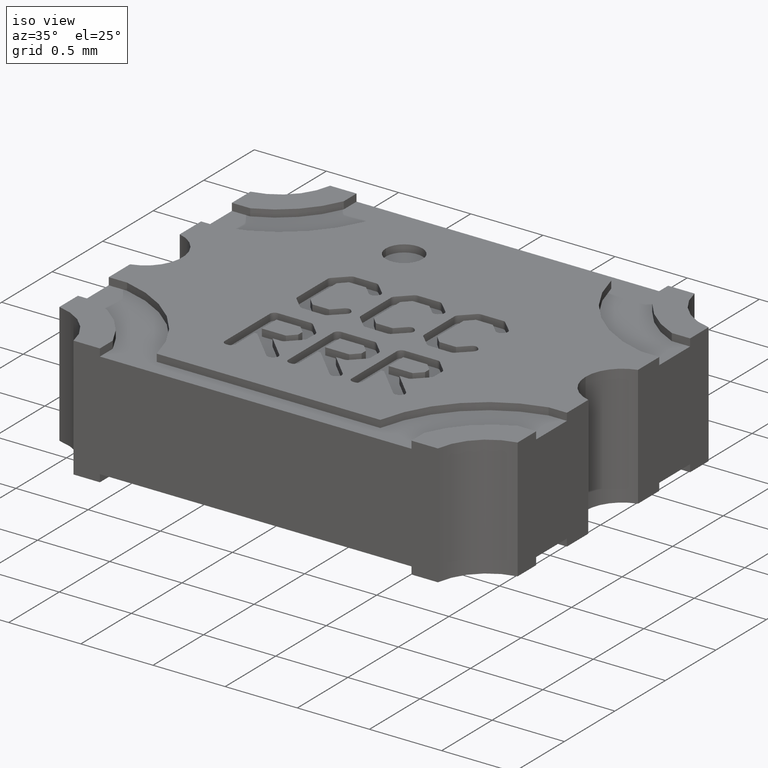
[diagram: clean part render]
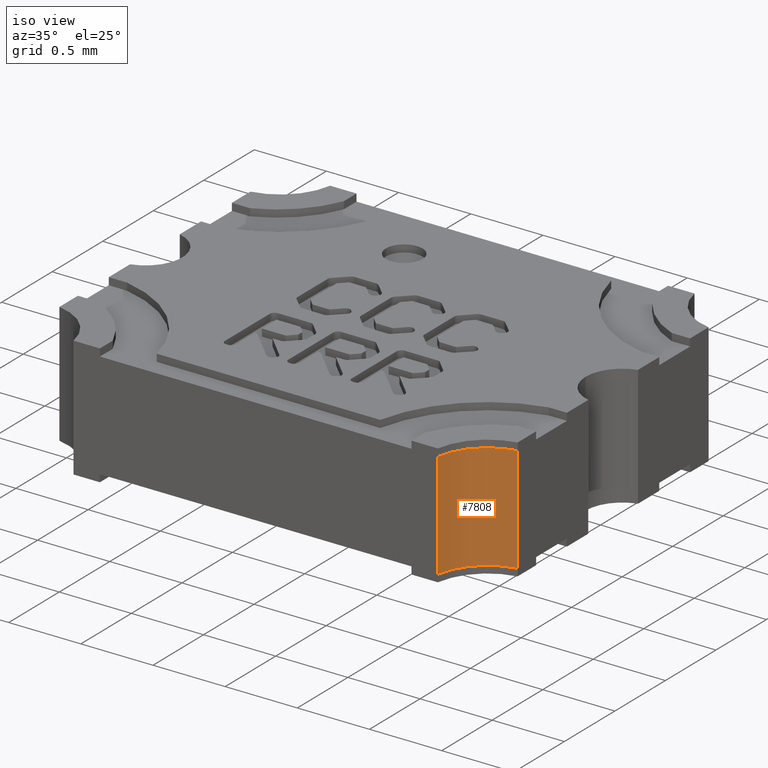
[diagram: same view with one face highlighted and labeled with its STEP entity id]
A machine part, iso view. The second image highlights one B-rep face of the part: STEP entity #7808.
In plain terms, the highlighted cylindrical surface (partial cylindrical patch) has radius 0.3937 mm, axis along (-0, -0, -1).
Its self-contained STEP definition (entity closure, byte-faithful):
#23 = EDGE_CURVE ( 'NONE', #6226, #6071, #6954, .T. ) ;
#453 = AXIS2_PLACEMENT_3D ( 'NONE', #3504, #2146, #6351 ) ;
#1162 = ORIENTED_EDGE ( 'NONE', *, *, #3834, .F. ) ;
#1305 = FACE_OUTER_BOUND ( 'NONE', #9148, .T. ) ;
#1379 = VECTOR ( 'NONE', #7645, 39.37007874015748143 ) ;
#1931 = CIRCLE ( 'NONE', #7163, 0.01549999999999998601 ) ;
#2146 = DIRECTION ( 'NONE',  ( 0.000000000000000000, 0.000000000000000000, 1.000000000000000000 ) ) ;
#2444 = ORIENTED_EDGE ( 'NONE', *, *, #23, .T. ) ;
#2577 = DIRECTION ( 'NONE',  ( -0.000000000000000000, -0.000000000000000000, -1.000000000000000000 ) ) ;
#2719 = CYLINDRICAL_SURFACE ( 'NONE', #5879, 0.01549999999999998601 ) ;
#2804 = CARTESIAN_POINT ( 'NONE',  ( 0.06500000000204800288, -0.05249999999976831533, 0.03100000000000000325 ) ) ;
#3117 = ORIENTED_EDGE ( 'NONE', *, *, #3151, .F. ) ;
#3151 = EDGE_CURVE ( 'NONE', #5619, #6071, #5983, .T. ) ;
#3161 = VERTEX_POINT ( 'NONE', #9197 ) ;
#3275 = DIRECTION ( 'NONE',  ( -1.000000000000000000, 0.000000000000000000, 0.000000000000000000 ) ) ;
#3334 = DIRECTION ( 'NONE',  ( -0.000000000000000000, -0.000000000000000000, -1.000000000000000000 ) ) ;
#3504 = CARTESIAN_POINT ( 'NONE',  ( 0.06500000000204800288, -0.05249999999976831533, 0.002000000000000000042 ) ) ;
#3643 = DIRECTION ( 'NONE',  ( 0.000000000000000000, 0.000000000000000000, 1.000000000000000000 ) ) ;
#3834 = EDGE_CURVE ( 'NONE', #3161, #5619, #4824, .T. ) ;
#4779 = CARTESIAN_POINT ( 'NONE',  ( 0.06250000000204798678, -0.03720294145898997429, 0.03100000000000000325 ) ) ;
#4824 = LINE ( 'NONE', #4779, #6309 ) ;
#5238 = CARTESIAN_POINT ( 'NONE',  ( 0.04970294146126964796, -0.04999999999976832699, 0.03100000000000000325 ) ) ;
#5619 = VERTEX_POINT ( 'NONE', #7890 ) ;
#5621 = EDGE_CURVE ( 'NONE', #3161, #6226, #1931, .T. ) ;
#5879 = AXIS2_PLACEMENT_3D ( 'NONE', #6873, #2577, #3275 ) ;
#5983 = CIRCLE ( 'NONE', #453, 0.01549999999999998601 ) ;
#6071 = VERTEX_POINT ( 'NONE', #8985 ) ;
#6226 = VERTEX_POINT ( 'NONE', #5238 ) ;
#6309 = VECTOR ( 'NONE', #3334, 39.37007874015748143 ) ;
#6351 = DIRECTION ( 'NONE',  ( 1.000000000000000000, 0.000000000000000000, 0.000000000000000000 ) ) ;
#6493 = DIRECTION ( 'NONE',  ( 1.000000000000000000, 0.000000000000000000, 0.000000000000000000 ) ) ;
#6873 = CARTESIAN_POINT ( 'NONE',  ( 0.06500000000204800288, -0.05249999999976831533, 0.03100000000000000325 ) ) ;
#6954 = LINE ( 'NONE', #8155, #1379 ) ;
#7163 = AXIS2_PLACEMENT_3D ( 'NONE', #2804, #3643, #6493 ) ;
#7645 = DIRECTION ( 'NONE',  ( -0.000000000000000000, -0.000000000000000000, -1.000000000000000000 ) ) ;
#7808 = ADVANCED_FACE ( 'NONE', ( #1305 ), #2719, .F. ) ;
#7890 = CARTESIAN_POINT ( 'NONE',  ( 0.06250000000204798678, -0.03720294145898997429, 0.002000000000000000042 ) ) ;
#8155 = CARTESIAN_POINT ( 'NONE',  ( 0.04970294146126964796, -0.04999999999976832699, 0.03100000000000000325 ) ) ;
#8985 = CARTESIAN_POINT ( 'NONE',  ( 0.04970294146126964796, -0.04999999999976832699, 0.002000000000000000042 ) ) ;
#9148 = EDGE_LOOP ( 'NONE', ( #3117, #1162, #9183, #2444 ) ) ;
#9183 = ORIENTED_EDGE ( 'NONE', *, *, #5621, .T. ) ;
#9197 = CARTESIAN_POINT ( 'NONE',  ( 0.06250000000204798678, -0.03720294145898997429, 0.03100000000000000325 ) ) ;